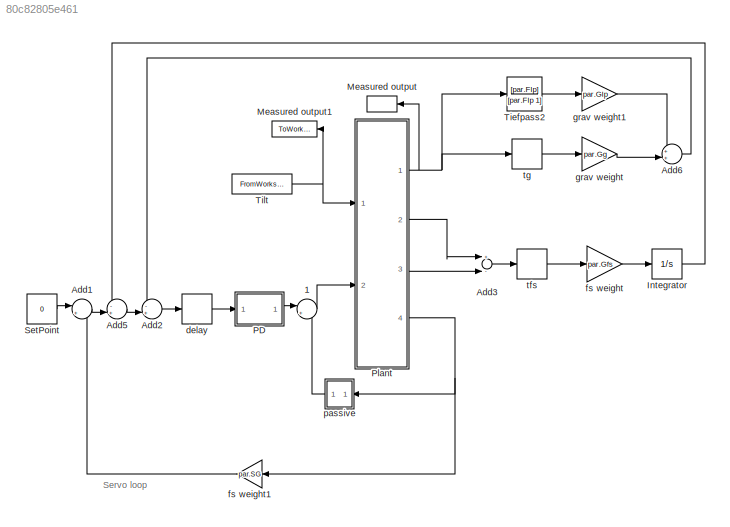
MODEL slx_80c82805e461
KIND model
CONFIG AbsTol = auto
CONFIG FixedStep = 1/sr
CONFIG MaxStep = auto
CONFIG MinStep = auto
CONFIG RelTol = 1e-3
CONFIG SampleTimeConstraint = Unconstrained
CONFIG Solver = ode5
CONFIG SolverMode = Auto
CONFIG SolverName = ode5
CONFIG StartTime = 0
CONFIG StopTime = sim_time-1/sr
BLOCK [Sum]  1
  IconShape = round
  InputSameDT = off
  Inputs = |+-
  OutDataTypeStr = Inherit: Inherit via internal rule
  Ports = [2, 1]
  SaturateOnIntegerOverflow = off
BLOCK [Sum] Add1
  IconShape = round
  InputSameDT = off
  Inputs = |+-
  OutDataTypeStr = Inherit: Inherit via internal rule
  Ports = [2, 1]
  SaturateOnIntegerOverflow = off
BLOCK [Sum] Add2
  IconShape = round
  InputSameDT = off
  Inputs = -+|
  OutDataTypeStr = Inherit: Inherit via internal rule
  Ports = [2, 1]
  SaturateOnIntegerOverflow = off
BLOCK [Sum] Add3
  InputSameDT = off
  Inputs = +-
  OutDataTypeStr = Inherit: Inherit via internal rule
  Ports = [2, 1]
  SaturateOnIntegerOverflow = off
BLOCK [Sum] Add5
  IconShape = round
  InputSameDT = off
  Inputs = -+|
  OutDataTypeStr = Inherit: Inherit via internal rule
  Ports = [2, 1]
  SaturateOnIntegerOverflow = off
BLOCK [Sum] Add6
  IconShape = round
  InputSameDT = off
  Inputs = ++|
  OutDataTypeStr = Inherit: Inherit via internal rule
  Ports = [2, 1]
  SaturateOnIntegerOverflow = off
BLOCK [Integrator] Integrator
  Ports = [1, 1]
BLOCK [ToWorkspace] Measured output
  MaxDataPoints = inf
  Ports = [1]
  SampleTime = -1
  VariableName = resp
BLOCK [ToWorkspace] Measured output1
  MaxDataPoints = inf
  Ports = [1]
  SampleTime = -1
  VariableName = stim_out
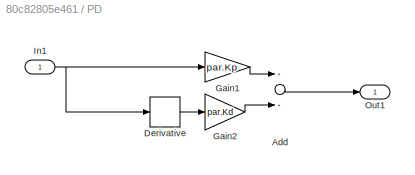
BLOCK [SubSystem] PD
  Ports = [1, 1]
  RequestExecContextInheritance = off
BLOCK [Sum] PD/Add
  InputSameDT = off
  OutDataTypeStr = Inherit: Inherit via internal rule
  Ports = [2, 1]
  SaturateOnIntegerOverflow = off
BLOCK [Derivative] PD/Derivative
BLOCK [Gain] PD/Gain1
  Gain = par.Kp
  OutDataTypeStr = Inherit: Inherit via internal rule
  ParamDataTypeStr = Inherit: Inherit via internal rule
  SaturateOnIntegerOverflow = off
BLOCK [Gain] PD/Gain2
  Gain = par.Kd
  OutDataTypeStr = Inherit: Inherit via internal rule
  ParamDataTypeStr = Inherit: Inherit via internal rule
  SaturateOnIntegerOverflow = off
BLOCK [Inport] PD/In1
  IconDisplay = Port number
BLOCK [Outport] PD/Out1
  IconDisplay = Port number
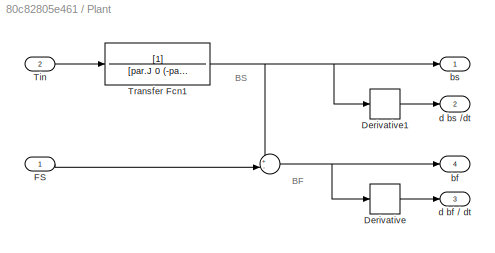
BLOCK [SubSystem] Plant
  Ports = [2, 4]
  RequestExecContextInheritance = off
BLOCK [Sum] Plant/ 
  IconShape = round
  InputSameDT = off
  Inputs = +-|
  OutDataTypeStr = Inherit: Inherit via internal rule
  Ports = [2, 1]
  SaturateOnIntegerOverflow = off
BLOCK [Derivative] Plant/Derivative
BLOCK [Derivative] Plant/Derivative1
BLOCK [Inport] Plant/FS
  IconDisplay = Port number
BLOCK [Inport] Plant/Tin
  IconDisplay = Port number
  Port = 2
BLOCK [TransferFcn] Plant/Transfer Fcn1
  Denominator = [par.J 0 (-par.mgh)]
BLOCK [Outport] Plant/bf
  IconDisplay = Port number
  Port = 4
BLOCK [Outport] Plant/bs
  IconDisplay = Port number
BLOCK [Outport] Plant/d bf // dt
  IconDisplay = Port number
  Port = 3
BLOCK [Outport] Plant/d bs //dt
  IconDisplay = Port number
  Port = 2
BLOCK [Constant] SetPoint
  Value = 0
BLOCK [TransferFcn] Tiefpass2
  Denominator = [par.Flp 1]
  Numerator = [par.Flp]
BLOCK [FromWorkspace] Tilt
  VariableName = [t,stim]
  ZeroCross = on
BLOCK [TransportDelay] delay
  DelayTime = par.dt
  FixedBuffer = on
  Ports = [1, 1]
BLOCK [Gain] fs weight
  Gain = par.Gfs
  OutDataTypeStr = Inherit: Inherit via internal rule
  ParamDataTypeStr = Inherit: Inherit via internal rule
  SaturateOnIntegerOverflow = off
BLOCK [Gain] fs weight1
  Gain = par.SG
  OutDataTypeStr = Inherit: Inherit via internal rule
  ParamDataTypeStr = Inherit: Inherit via internal rule
  SaturateOnIntegerOverflow = off
BLOCK [Gain] grav weight
  Gain = par.Gg
  OutDataTypeStr = Inherit: Inherit via internal rule
  ParamDataTypeStr = Inherit: Inherit via internal rule
  SaturateOnIntegerOverflow = off
BLOCK [Gain] grav weight1
  Gain = par.Glp
  OutDataTypeStr = Inherit: Inherit via internal rule
  ParamDataTypeStr = Inherit: Inherit via internal rule
  SaturateOnIntegerOverflow = off
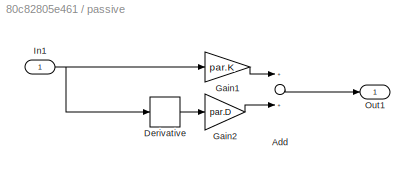
BLOCK [SubSystem] passive
  Ports = [1, 1]
  RequestExecContextInheritance = off
BLOCK [Sum] passive/Add
  InputSameDT = off
  OutDataTypeStr = Inherit: Inherit via internal rule
  Ports = [2, 1]
  SaturateOnIntegerOverflow = off
BLOCK [Derivative] passive/Derivative
BLOCK [Gain] passive/Gain1
  Gain = par.K
  OutDataTypeStr = Inherit: Inherit via internal rule
  ParamDataTypeStr = Inherit: Inherit via internal rule
  SaturateOnIntegerOverflow = off
BLOCK [Gain] passive/Gain2
  Gain = par.D
  OutDataTypeStr = Inherit: Inherit via internal rule
  ParamDataTypeStr = Inherit: Inherit via internal rule
  SaturateOnIntegerOverflow = off
BLOCK [Inport] passive/In1
  IconDisplay = Port number
BLOCK [Outport] passive/Out1
  IconDisplay = Port number
BLOCK [DeadZone] tfs
  LinearizeAsGain = off
  LowerValue = -par.tfs
  SaturateOnIntegerOverflow = off
  UpperValue = par.tfs
BLOCK [DeadZone] tg
  LinearizeAsGain = off
  LowerValue = -par.tg
  SaturateOnIntegerOverflow = off
  UpperValue = par.tg
ANNOTATION (root): Servo loop
ANNOTATION Plant: BF
ANNOTATION Plant: BS
LINE  1:1 -> Plant:2
LINE Add1:1 -> Add5:2
LINE Add2:1 -> delay:1
LINE Add3:1 -> tfs:1
LINE Add5:1 -> Add2:2
LINE Add6:1 -> Add2:1
LINE Integrator:1 -> Add5:1
LINE PD/Add:1 -> PD/Out1:1
LINE PD/Derivative:1 -> PD/Gain2:1
LINE PD/Gain1:1 -> PD/Add:1
LINE PD/Gain2:1 -> PD/Add:2
NET PD/In1:1 -> PD/Derivative:1, PD/Gain1:1
LINE PD:1 ->  1:1
NET Plant/ :1 -> Plant/Derivative:1, Plant/bf:1
LINE Plant/Derivative1:1 -> Plant/d bs //dt:1
LINE Plant/Derivative:1 -> Plant/d bf // dt:1
LINE Plant/FS:1 -> Plant/ :2
LINE Plant/Tin:1 -> Plant/Transfer Fcn1:1
NET Plant/Transfer Fcn1:1 -> Plant/ :1, Plant/Derivative1:1, Plant/bs:1
NET Plant:1 -> Measured output:1, Tiefpass2:1, tg:1
LINE Plant:2 -> Add3:1
LINE Plant:3 -> Add3:2
NET Plant:4 -> fs weight1:1, passive:1
LINE SetPoint:1 -> Add1:1
LINE Tiefpass2:1 -> grav weight1:1
NET Tilt:1 -> Measured output1:1, Plant:1
LINE delay:1 -> PD:1
LINE fs weight1:1 -> Add1:2
LINE fs weight:1 -> Integrator:1
LINE grav weight1:1 -> Add6:1
LINE grav weight:1 -> Add6:2
LINE passive/Add:1 -> passive/Out1:1
LINE passive/Derivative:1 -> passive/Gain2:1
LINE passive/Gain1:1 -> passive/Add:1
LINE passive/Gain2:1 -> passive/Add:2
NET passive/In1:1 -> passive/Derivative:1, passive/Gain1:1
LINE passive:1 ->  1:2
LINE tfs:1 -> fs weight:1
LINE tg:1 -> grav weight:1
note: NET lines group one-source signal fan-out (src -> all destinations, sorted); 1:1 wires keep LINE
